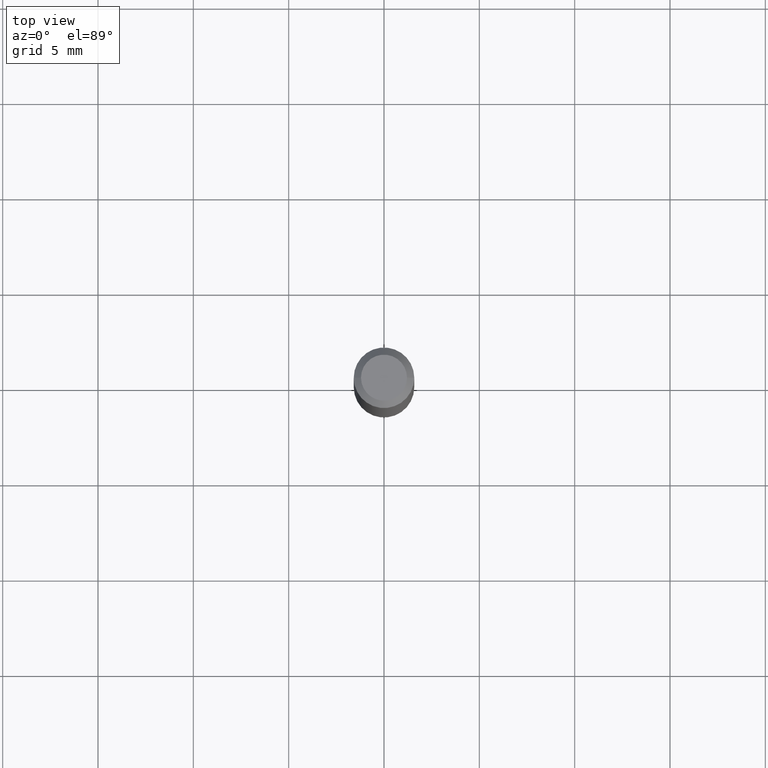
[diagram: clean part render]
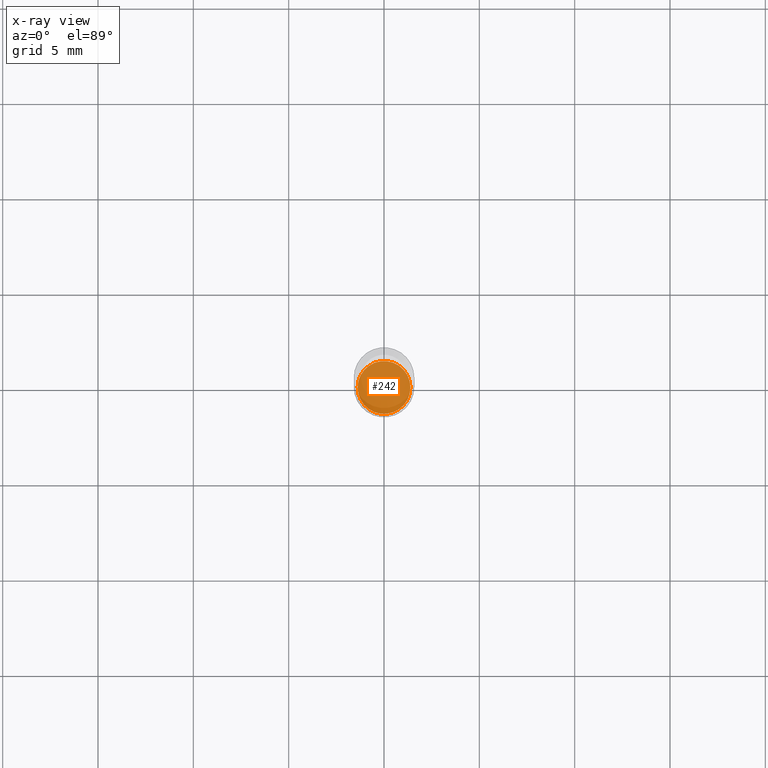
[diagram: x-ray — body ghosted, one internal face saturated and labeled with its STEP entity id]
A machine part, top view, then the same camera in x-ray: the body is ghosted and one INTERNAL B-rep face — a face not visible from any outside direction — is saturated and labeled: STEP entity #242.
In plain terms, the highlighted planar face has unit normal (-0, 0, 1).
Its self-contained STEP definition (entity closure, byte-faithful):
#45 = DIRECTION ( 'NONE',  ( -2.445468806185136597E-29, 3.491481338843145583E-15, 1.000000000000000000 ) ) ;
#62 = AXIS2_PLACEMENT_3D ( 'NONE', #194, #45, #482 ) ;
#84 = ORIENTED_EDGE ( 'NONE', *, *, #113, .F. ) ;
#108 = DIRECTION ( 'NONE',  ( -2.438088387897960049E-29, 3.491481338843145188E-15, 1.000000000000000000 ) ) ;
#113 = EDGE_CURVE ( 'NONE', #218, #412, #355, .T. ) ;
#131 = DIRECTION ( 'NONE',  ( -2.445468806185136597E-29, 3.491481338843145583E-15, 1.000000000000000000 ) ) ;
#184 = ORIENTED_EDGE ( 'NONE', *, *, #443, .F. ) ;
#194 = CARTESIAN_POINT ( 'NONE',  ( 2.861198503236610065E-29, -4.085033166446480067E-15, -1.170000000000000151 ) ) ;
#209 = DIRECTION ( 'NONE',  ( 1.000000000000000000, -6.982962677686261977E-15, 0.000000000000000000 ) ) ;
#218 = VERTEX_POINT ( 'NONE', #228 ) ;
#228 = CARTESIAN_POINT ( 'NONE',  ( -0.05450000000000006228, -3.695138148283114316E-15, -1.170000000000000151 ) ) ;
#242 = ADVANCED_FACE ( 'NONE', ( #473 ), #399, .F. ) ;
#246 = AXIS2_PLACEMENT_3D ( 'NONE', #515, #108, #437 ) ;
#285 = CIRCLE ( 'NONE', #436, 0.05450000000000006228 ) ;
#341 = CARTESIAN_POINT ( 'NONE',  ( 0.05450000000000006228, -4.465604632380382045E-15, -1.170000000000000151 ) ) ;
#355 = CIRCLE ( 'NONE', #62, 0.05450000000000006228 ) ;
#399 = PLANE ( 'NONE',  #246 ) ;
#412 = VERTEX_POINT ( 'NONE', #341 ) ;
#436 = AXIS2_PLACEMENT_3D ( 'NONE', #465, #131, #209 ) ;
#437 = DIRECTION ( 'NONE',  ( 1.000000000000000000, -6.982962677686265922E-15, 4.876176775795935793E-29 ) ) ;
#443 = EDGE_CURVE ( 'NONE', #412, #218, #285, .T. ) ;
#465 = CARTESIAN_POINT ( 'NONE',  ( 2.861198503236610065E-29, -4.085033166446480067E-15, -1.170000000000000151 ) ) ;
#473 = FACE_OUTER_BOUND ( 'NONE', #497, .T. ) ;
#482 = DIRECTION ( 'NONE',  ( 1.000000000000000000, -6.982962677686261977E-15, 0.000000000000000000 ) ) ;
#497 = EDGE_LOOP ( 'NONE', ( #184, #84 ) ) ;
#515 = CARTESIAN_POINT ( 'NONE',  ( 2.861198503236610065E-29, -4.085033166446480067E-15, -1.170000000000000151 ) ) ;